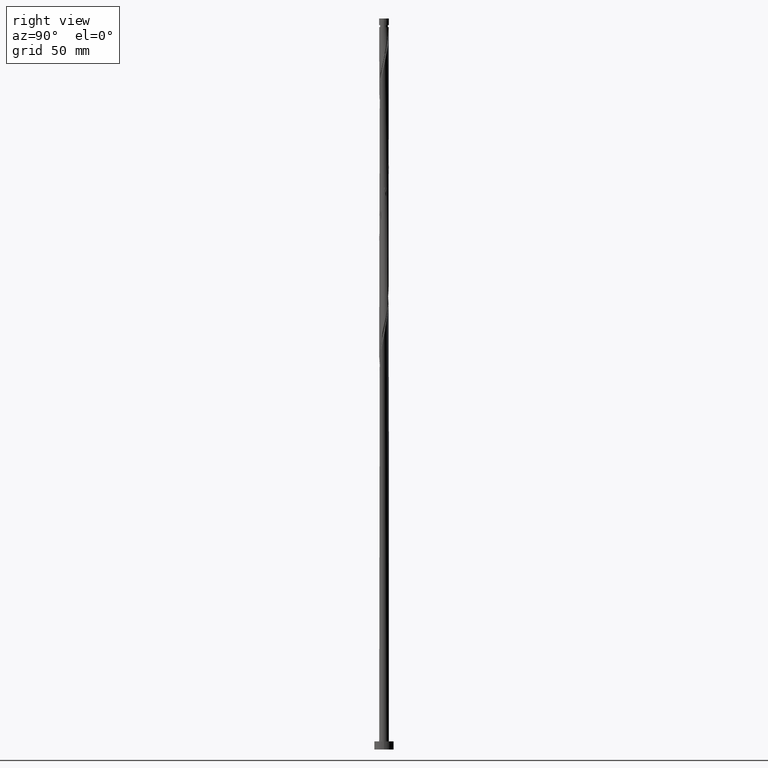
[diagram: clean part render]
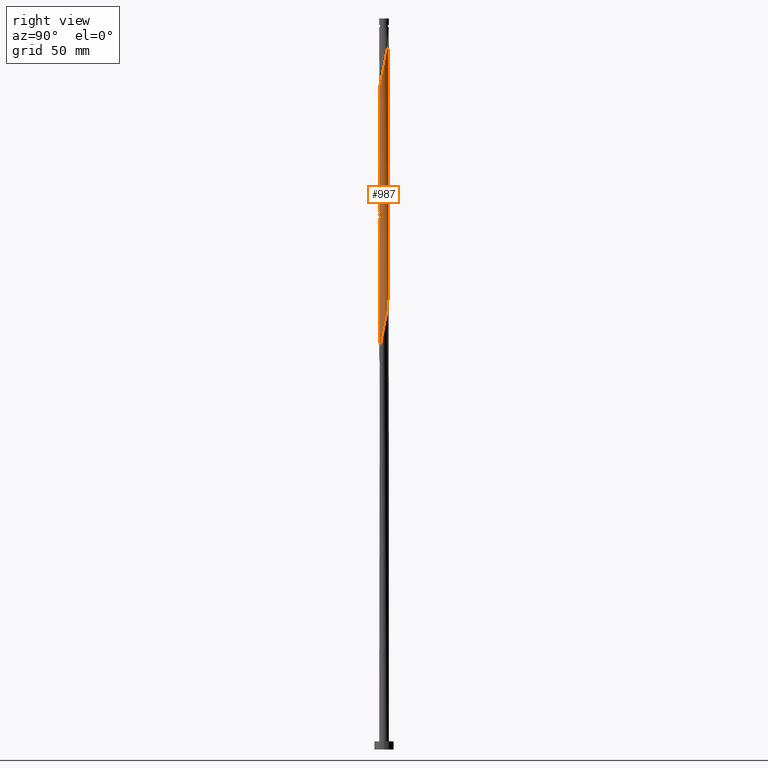
[diagram: same view with one face highlighted and labeled with its STEP entity id]
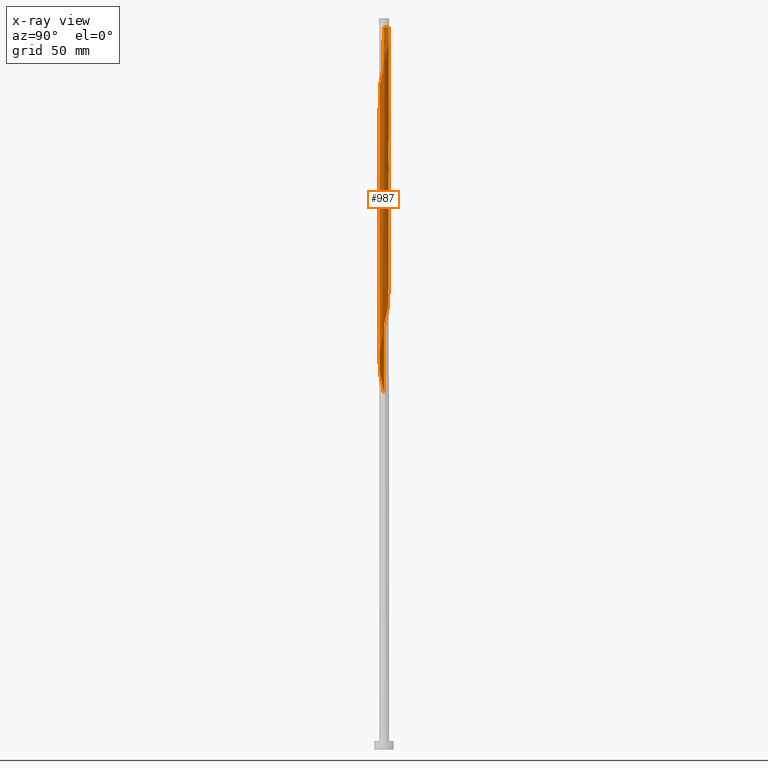
[diagram: x-ray of the same camera — body ghosted, the highlighted face saturated]
A machine part, right view. The second image highlights one B-rep face of the part: STEP entity #987.
The next image is the same camera in x-ray: the body ghosted, the highlighted face saturated — about 0% of this face is hidden behind the body in this view.
In plain terms, the highlighted cylindrical surface (bore or boss wall) has radius 3 mm, axis along (-0, -0, -1).
Its self-contained STEP definition (entity closure, byte-faithful):
#9 = CARTESIAN_POINT ( 'NONE',  ( 2.881201374597972542, -0.8865571881340372773, 341.3779548537389701 ) ) ;
#15 = CARTESIAN_POINT ( 'NONE',  ( -2.322612231291374396, 1.921660071883963150, 377.8362881870723982 ) ) ;
#17 = VERTEX_POINT ( 'NONE', #1264 ) ;
#19 = CARTESIAN_POINT ( 'NONE',  ( -2.129757576223799465, -2.112849418798540935, 230.7008715204056841 ) ) ;
#37 = CARTESIAN_POINT ( 'NONE',  ( -2.487746701027922391, -1.676638408102568922, 389.5550381870722845 ) ) ;
#38 = CARTESIAN_POINT ( 'NONE',  ( -2.652881170764463281, 1.431616744321171586, 380.4404548537389132 ) ) ;
#47 = CARTESIAN_POINT ( 'NONE',  ( -1.903086606305709028, -2.337855080563638666, 393.4612881870722845 ) ) ;
#55 = CARTESIAN_POINT ( 'NONE',  ( -0.5735401742041612572, 2.944664950138446535, 285.3883715204057694 ) ) ;
#57 = CARTESIAN_POINT ( 'NONE',  ( 0.01195587277276895059, -2.999976176089781621, 402.5758715204057694 ) ) ;
#58 = CARTESIAN_POINT ( 'NONE',  ( 2.776191901540426610, 1.136995393931460985, 350.4925381870723413 ) ) ;
#64 = CARTESIAN_POINT ( 'NONE',  ( -3.000000000000004441, -0.005977960122785148413, 381.7161947635927959 ) ) ;
#73 = CARTESIAN_POINT ( 'NONE',  ( 2.652881170764463281, -1.431616744321171808, 255.4404548537389417 ) ) ;
#80 = CARTESIAN_POINT ( 'NONE',  ( -1.921660071883963150, -2.322612231291374396, 315.3362881870723982 ) ) ;
#83 = CARTESIAN_POINT ( 'NONE',  ( -2.487746701027919283, 1.676638408102567368, 295.8050381870724550 ) ) ;
#84 = VERTEX_POINT ( 'NONE', #1499 ) ;
#89 = CARTESIAN_POINT ( 'NONE',  ( 2.944664950138446535, 0.5735401742041618123, 347.8883715204058262 ) ) ;
#96 = CARTESIAN_POINT ( 'NONE',  ( 2.944664950138446535, 0.5735401742041618123, 264.5550381870724550 ) ) ;
#97 = CARTESIAN_POINT ( 'NONE',  ( 2.767041272681221908, 1.159086966227606208, 428.6175381870723982 ) ) ;
#98 = CARTESIAN_POINT ( 'NONE',  ( 1.159086966227606208, 2.767041272681216579, 360.9092048537390838 ) ) ;
#105 = CARTESIAN_POINT ( 'NONE',  ( 1.410426430302971657, -2.664207629581484049, 247.6279548537389985 ) ) ;
#116 = DIRECTION ( 'NONE',  ( -1.000000000000000000, 0.000000000000000000, 0.000000000000000000 ) ) ;
#145 = CARTESIAN_POINT ( 'NONE',  ( 2.337855080563637777, 1.903086606305704143, 271.0654548537389701 ) ) ;
#153 = CARTESIAN_POINT ( 'NONE',  ( 3.000000000000000444, -0.005977960122789841707, 345.3105482772185724 ) ) ;
#158 = CARTESIAN_POINT ( 'NONE',  ( -2.881201374597971654, 0.8865571881340383875, 383.0446215204057125 ) ) ;
#162 = CARTESIAN_POINT ( 'NONE',  ( -2.944664950138446535, -0.5735401742041610351, 222.8883715204057694 ) ) ;
#175 = CARTESIAN_POINT ( 'NONE',  ( -0.01195587277277008510, -2.999976176089778068, 241.1175381870723129 ) ) ;
#197 = CARTESIAN_POINT ( 'NONE',  ( -1.410426430302972545, 2.664207629581484049, 289.2946215204057125 ) ) ;
#200 = CARTESIAN_POINT ( 'NONE',  ( -0.5735401742041624784, -2.944664950138451420, 399.9717048537390838 ) ) ;
#227 = CARTESIAN_POINT ( 'NONE',  ( 1.136995393931461207, -2.776191901540426610, 246.3258715204057125 ) ) ;
#228 = CARTESIAN_POINT ( 'NONE',  ( -0.3074277363939080243, 2.998798625402031792, 445.5446215204057125 ) ) ;
#235 = CARTESIAN_POINT ( 'NONE',  ( -2.337855080563636889, -1.903086606305705697, 312.7321215204057694 ) ) ;
#240 = CARTESIAN_POINT ( 'NONE',  ( 2.767041272681216579, -1.159086966227606208, 256.7425381870724550 ) ) ;
#241 = CARTESIAN_POINT ( 'NONE',  ( 2.112849418798544487, 2.129757576223801685, 433.8258715204057694 ) ) ;
#262 = DIRECTION ( 'NONE',  ( -0.000000000000000000, -0.000000000000000000, -1.000000000000000000 ) ) ;
#288 = CIRCLE ( 'NONE', #809, 2.999999999999957812 ) ;
#291 = DIRECTION ( 'NONE',  ( -0.000000000000000000, -0.000000000000000000, -1.000000000000000000 ) ) ;
#292 = DIRECTION ( 'NONE',  ( -0.000000000000000000, -0.000000000000000000, -1.000000000000000000 ) ) ;
#313 = CARTESIAN_POINT ( 'NONE',  ( -2.337855080563636889, -1.903086606305705697, 229.3987881870722845 ) ) ;
#323 = CARTESIAN_POINT ( 'NONE',  ( -0.3074277363939119101, -2.998798625402026907, 239.8154548537389985 ) ) ;
#332 = CARTESIAN_POINT ( 'NONE',  ( -2.939999999999999503, 0.5969924622639750655, 384.3467048537390838 ) ) ;
#340 = LINE ( 'NONE', #950, #516 ) ;
#341 = CARTESIAN_POINT ( 'NONE',  ( -0.8635643575599528665, -2.888176173499371391, 398.6696215204055989 ) ) ;
#346 = CARTESIAN_POINT ( 'NONE',  ( 2.337855080563638666, -1.903086606305709028, 414.2946215204057125 ) ) ;
#358 = CARTESIAN_POINT ( 'NONE',  ( -2.888176173499367838, -0.8635643575599509791, 307.5237881870723982 ) ) ;
#362 = CARTESIAN_POINT ( 'NONE',  ( 0.01195587277277040082, 2.999976176089778068, 366.1175381870724550 ) ) ;
#369 = CARTESIAN_POINT ( 'NONE',  ( 0.8865571881340386096, -2.881201374597976095, 406.4821215204057694 ) ) ;
#370 = CARTESIAN_POINT ( 'NONE',  ( 2.501031355072560469, 1.656756518304338899, 353.0967048537389701 ) ) ;
#378 = CARTESIAN_POINT ( 'NONE',  ( 2.487746701027917950, -1.676638408102568700, 254.1383715204057410 ) ) ;
#388 = CARTESIAN_POINT ( 'NONE',  ( -2.939999999999999503, 0.5969924622639750655, 301.0133715204057125 ) ) ;
#391 = CARTESIAN_POINT ( 'NONE',  ( 1.431616744321171808, 2.652881170764462393, 359.6071215204057694 ) ) ;
#400 = CARTESIAN_POINT ( 'NONE',  ( 2.881201374597976539, 0.8865571881340368332, 427.3154548537389701 ) ) ;
#414 =( BOUNDED_CURVE ( )  B_SPLINE_CURVE ( 2, ( #1097, #611, #1225, #1701, #332, #158, #1074, #38, #776, #15, #623, #1711, #1237, #1740, #1920, #1308, #707, #1588, #362, #670, #1909, #1580, #98, #391, #1002, #679, #1138, #1317, #370, #978, #58, #549, #89, #1599, #1732 ),
 .UNSPECIFIED., .F., .T. ) 
 B_SPLINE_CURVE_WITH_KNOTS ( ( 3, 2, 2, 2, 2, 2, 2, 2, 2, 2, 2, 2, 2, 2, 2, 2, 2, 3 ),
 ( 0.4295286902180869837, 0.4296875000000000000, 0.4375000000000000000, 0.4453125000000000000, 0.4531250000000000000, 0.4609375000000000000, 0.4687500000000000000, 0.4765625000000000000, 0.4843750000000000000, 0.4921875000000000000, 0.5000000000000000000, 0.5078125000000000000, 0.5156250000000000000, 0.5234375000000000000, 0.5312500000000000000, 0.5390625000000000000, 0.5468750000000000000, 0.5545286902180873723 ),
 .UNSPECIFIED. ) 
 CURVE ( )  GEOMETRIC_REPRESENTATION_ITEM ( )  RATIONAL_B_SPLINE_CURVE ( ( 0.9089165573359706540, 0.9090019243628755241, 0.9090909090909674584, 0.9047133878838734544, 0.9090909090909674584, 0.9047133878838734544, 0.9090909090909674584, 0.9047133878838734544, 0.9090909090909674584, 0.9047133878838734544, 0.9090909090909674584, 0.9047133878838734544, 0.9090909090909674584, 0.9047133878838734544, 0.9090909090909674584, 0.9047133878838734544, 0.9090909090909674584, 0.9047133878838734544, 0.9090909090909674584, 0.9047133878838734544, 0.9090909090909674584, 0.9047133878838734544, 0.9090909090909674584, 0.9047133878838734544, 0.9090909090909674584, 0.9047133878838734544, 0.9090909090909674584, 0.9047133878838734544, 0.9090909090909674584, 0.9047133878838734544, 0.9090909090909674584, 0.9047133878838734544, 0.9090909090909674584, 0.9048023726119651666, 0.9089165573359709871 ) ) 
 REPRESENTATION_ITEM ( '' )  );
#419 = CARTESIAN_POINT ( 'NONE',  ( 2.501031355072563134, -1.656756518304342229, 415.5967048537390269 ) ) ;
#427 = EDGE_CURVE ( 'NONE', #1408, #17, #288, .T. ) ;
#435 = ORIENTED_EDGE ( 'NONE', *, *, #1825, .F. ) ;
#465 = CARTESIAN_POINT ( 'NONE',  ( 2.998798625402026907, -0.3074277363939132979, 343.9821215204056557 ) ) ;
#473 = CARTESIAN_POINT ( 'NONE',  ( -1.921660071883963150, -2.322612231291374396, 232.0029548537390269 ) ) ;
#477 =( BOUNDED_CURVE ( )  B_SPLINE_CURVE ( 2, ( #1523, #153, #1256, #465, #1849, #9, #770, #1514, #616, #1230, #1693, #1060, #488, #1837, #796, #806, #1080, #1104, #1534, #629, #1243, #1972, #935, #1401, #1211, #80, #1153, #235, #1717, #559, #676, #358, #1585, #1757, #1745, #684, #388, #1296, #1895, #1904, #83, #524, #694, #536, #1568, #197, #820, #1424, #55, #667, #1279, #1126, #1729, #968, #1577, #750, #1796, #740, #1963, #145, #1204, #761, #558, #1608, #96, #1011, #527, #1299, #1786, #1021, #240, #73, #378, #1629, #1597, #1775, #1462, #105, #227, #768, #1077, #1227, #175, #323, #932, #1846, #1834, #1677, #1544, #473, #19, #313, #1089, #626, #922, #1531, #162, #780, #1387 ),
 .UNSPECIFIED., .F., .T. ) 
 B_SPLINE_CURVE_WITH_KNOTS ( ( 3, 2, 2, 2, 2, 2, 2, 2, 2, 2, 2, 2, 2, 2, 2, 2, 2, 2, 2, 2, 2, 2, 2, 2, 2, 2, 2, 2, 2, 2, 2, 2, 2, 2, 2, 2, 2, 2, 2, 2, 2, 2, 2, 2, 2, 2, 2, 2, 2, 3 ),
 ( 0.5545286902180873723, 0.5546875000000000000, 0.5625000000000000000, 0.5703125000000000000, 0.5781250000000000000, 0.5859375000000000000, 0.5937500000000000000, 0.6015625000000000000, 0.6093750000000000000, 0.6171875000000000000, 0.6250000000000000000, 0.6328125000000000000, 0.6406250000000000000, 0.6484375000000000000, 0.6562500000000000000, 0.6640625000000000000, 0.6718750000000000000, 0.6796875000000000000, 0.6875000000000000000, 0.6953125000000000000, 0.7031250000000000000, 0.7109375000000000000, 0.7187500000000000000, 0.7265625000000000000, 0.7343750000000000000, 0.7421875000000000000, 0.7500000000000000000, 0.7578125000000000000, 0.7656250000000000000, 0.7734375000000000000, 0.7812500000000000000, 0.7890625000000000000, 0.7968750000000000000, 0.8046875000000000000, 0.8125000000000000000, 0.8203125000000000000, 0.8281250000000000000, 0.8359375000000000000, 0.8437500000000000000, 0.8515625000000000000, 0.8593750000000000000, 0.8671875000000000000, 0.8750000000000000000, 0.8828125000000000000, 0.8906250000000000000, 0.8984375000000000000, 0.9062500000000000000, 0.9140625000000000000, 0.9218750000000000000, 0.9295286902180872612 ),
 .UNSPECIFIED. ) 
 CURVE ( )  GEOMETRIC_REPRESENTATION_ITEM ( )  RATIONAL_B_SPLINE_CURVE ( ( 0.9089165573359709871, 0.9090019243628757462, 0.9090909090909674584, 0.9047133878838734544, 0.9090909090909674584, 0.9047133878838734544, 0.9090909090909674584, 0.9047133878838734544, 0.9090909090909674584, 0.9047133878838734544, 0.9090909090909674584, 0.9047133878838734544, 0.9090909090909674584, 0.9047133878838734544, 0.9090909090909674584, 0.9047133878838734544, 0.9090909090909674584, 0.9047133878838734544, 0.9090909090909674584, 0.9047133878838734544, 0.9090909090909674584, 0.9047133878838734544, 0.9090909090909674584, 0.9047133878838734544, 0.9090909090909674584, 0.9047133878838734544, 0.9090909090909674584, 0.9047133878838734544, 0.9090909090909674584, 0.9047133878838734544, 0.9090909090909674584, 0.9047133878838734544, 0.9090909090909674584, 0.9047133878838734544, 0.9090909090909674584, 0.9047133878838734544, 0.9090909090909674584, 0.9047133878838734544, 0.9090909090909674584, 0.9047133878838734544, 0.9090909090909674584, 0.9047133878838734544, 0.9090909090909674584, 0.9047133878838734544, 0.9090909090909674584, 0.9047133878838734544, 0.9090909090909674584, 0.9047133878838734544, 0.9090909090909674584, 0.9047133878838734544, 0.9090909090909674584, 0.9047133878838734544, 0.9090909090909674584, 0.9047133878838734544, 0.9090909090909674584, 0.9047133878838734544, 0.9090909090909674584, 0.9047133878838734544, 0.9090909090909674584, 0.9047133878838734544, 0.9090909090909674584, 0.9047133878838734544, 0.9090909090909674584, 0.9047133878838734544, 0.9090909090909674584, 0.9047133878838734544, 0.9090909090909674584, 0.9047133878838734544, 0.9090909090909674584, 0.9047133878838734544, 0.9090909090909674584, 0.9047133878838734544, 0.9090909090909674584, 0.9047133878838734544, 0.9090909090909674584, 0.9047133878838734544, 0.9090909090909674584, 0.9047133878838734544, 0.9090909090909674584, 0.9047133878838734544, 0.9090909090909674584, 0.9047133878838734544, 0.9090909090909674584, 0.9047133878838734544, 0.9090909090909674584, 0.9047133878838734544, 0.9090909090909674584, 0.9047133878838734544, 0.9090909090909674584, 0.9047133878838734544, 0.9090909090909674584, 0.9047133878838734544, 0.9090909090909674584, 0.9047133878838734544, 0.9090909090909674584, 0.9047133878838734544, 0.9090909090909674584, 0.9048023726119652776, 0.9089165573359708761 ) ) 
 REPRESENTATION_ITEM ( '' )  );
#478 = EDGE_CURVE ( 'NONE', #1489, #637, #1363, .T. ) ;
#481 = CARTESIAN_POINT ( 'NONE',  ( -3.000000000000000444, 0.000000000000000000, 452.1200000000000045 ) ) ;
#488 = CARTESIAN_POINT ( 'NONE',  ( 1.656756518304339121, -2.501031355072560469, 332.2633715204058262 ) ) ;
#516 = VECTOR ( 'NONE', #1380, 1000.000000000000000 ) ;
#517 = CARTESIAN_POINT ( 'NONE',  ( 0.5969924622639749545, -2.940000000000005276, 405.1800381870724550 ) ) ;
#524 = CARTESIAN_POINT ( 'NONE',  ( -2.322612231291374396, 1.921660071883963150, 294.5029548537390269 ) ) ;
#527 = CARTESIAN_POINT ( 'NONE',  ( 2.999976176089778068, -0.01195587277277018919, 261.9508715204057125 ) ) ;
#529 = CARTESIAN_POINT ( 'NONE',  ( 2.888176173499371391, -0.8635643575599529775, 419.5029548537390838 ) ) ;
#536 = CARTESIAN_POINT ( 'NONE',  ( -1.903086606305705031, 2.337855080563636889, 291.8987881870723413 ) ) ;
#549 = CARTESIAN_POINT ( 'NONE',  ( 2.888176173499366950, 0.8635643575599506461, 349.1904548537390838 ) ) ;
#558 = CARTESIAN_POINT ( 'NONE',  ( 2.776191901540426610, 1.136995393931460985, 267.1592048537390269 ) ) ;
#559 = CARTESIAN_POINT ( 'NONE',  ( -2.664207629581484049, -1.410426430302972545, 310.1279548537387996 ) ) ;
#560 = CARTESIAN_POINT ( 'NONE',  ( 2.487746701027921947, 1.676638408102569588, 431.2217048537390269 ) ) ;
#611 = CARTESIAN_POINT ( 'NONE',  ( -3.000000000000001332, 0.005977960122775521565, 386.9772149438853148 ) ) ;
#616 = CARTESIAN_POINT ( 'NONE',  ( 2.487746701027917950, -1.676638408102568700, 337.4717048537390838 ) ) ;
#623 = CARTESIAN_POINT ( 'NONE',  ( -2.112849418798540935, 2.129757576223799465, 376.5342048537390269 ) ) ;
#625 = ORIENTED_EDGE ( 'NONE', *, *, #427, .T. ) ;
#626 = CARTESIAN_POINT ( 'NONE',  ( -2.664207629581484049, -1.410426430302972545, 226.7946215204056557 ) ) ;
#629 = CARTESIAN_POINT ( 'NONE',  ( -0.3074277363939119101, -2.998798625402026907, 323.1487881870725118 ) ) ;
#637 = VERTEX_POINT ( 'NONE', #1887 ) ;
#646 = CARTESIAN_POINT ( 'NONE',  ( -3.000000000000000444, -2.025051232181741774E-15, 387.0035684984025011 ) ) ;
#647 = CARTESIAN_POINT ( 'NONE',  ( -2.112849418798544043, -2.129757576223801685, 392.1592048537389701 ) ) ;
#651 = ORIENTED_EDGE ( 'NONE', *, *, #1918, .F. ) ;
#667 = CARTESIAN_POINT ( 'NONE',  ( -0.2835159908483709801, 3.001153726777527897, 284.0862881870723982 ) ) ;
#670 = CARTESIAN_POINT ( 'NONE',  ( 0.3074277363939118546, 2.998798625402026907, 364.8154548537389132 ) ) ;
#676 = CARTESIAN_POINT ( 'NONE',  ( -2.776191901540425722, -1.136995393931461207, 308.8258715204057125 ) ) ;
#679 = CARTESIAN_POINT ( 'NONE',  ( 1.921660071883963372, 2.322612231291373508, 357.0029548537390838 ) ) ;
#684 = CARTESIAN_POINT ( 'NONE',  ( -2.998798625402026907, 0.3074277363939117436, 302.3154548537389701 ) ) ;
#694 = CARTESIAN_POINT ( 'NONE',  ( -2.112849418798540935, 2.129757576223799465, 293.2008715204057694 ) ) ;
#707 = CARTESIAN_POINT ( 'NONE',  ( -0.5735401742041612572, 2.944664950138446535, 368.7217048537390838 ) ) ;
#715 = CARTESIAN_POINT ( 'NONE',  ( 2.999976176089782065, 0.01195587277276874069, 423.4092048537389701 ) ) ;
#724 = EDGE_LOOP ( 'NONE', ( #1960, #625, #1185, #1144, #1905, #435, #1653, #651 ) ) ;
#740 = CARTESIAN_POINT ( 'NONE',  ( 1.921660071883963372, 2.322612231291373508, 273.6696215204057125 ) ) ;
#750 = CARTESIAN_POINT ( 'NONE',  ( 1.431616744321171808, 2.652881170764462393, 276.2737881870723413 ) ) ;
#754 = DIRECTION ( 'NONE',  ( -0.000000000000000000, -0.000000000000000000, -1.000000000000000000 ) ) ;
#761 = CARTESIAN_POINT ( 'NONE',  ( 2.664207629581483605, 1.410426430302972767, 268.4612881870723982 ) ) ;
#768 = CARTESIAN_POINT ( 'NONE',  ( 0.8635643575599506461, -2.888176173499367838, 245.0237881870723413 ) ) ;
#770 = CARTESIAN_POINT ( 'NONE',  ( 2.767041272681216579, -1.159086966227606208, 340.0758715204058262 ) ) ;
#776 = CARTESIAN_POINT ( 'NONE',  ( -2.487746701027919283, 1.676638408102567368, 379.1383715204056557 ) ) ;
#780 = CARTESIAN_POINT ( 'NONE',  ( -3.000000000000001332, -0.2894394447869411136, 221.6128819371518262 ) ) ;
#796 = CARTESIAN_POINT ( 'NONE',  ( 1.136995393931461207, -2.776191901540426610, 329.6592048537390269 ) ) ;
#806 = CARTESIAN_POINT ( 'NONE',  ( 0.8635643575599506461, -2.888176173499367838, 328.3571215204056557 ) ) ;
#808 = EDGE_CURVE ( 'NONE', #1489, #17, #1251, .T. ) ;
#809 = AXIS2_PLACEMENT_3D ( 'NONE', #1831, #754, #1657 ) ;
#820 = CARTESIAN_POINT ( 'NONE',  ( -1.136995393931461873, 2.776191901540426610, 287.9925381870724550 ) ) ;
#830 = CARTESIAN_POINT ( 'NONE',  ( -2.999976176089781621, -0.01195587277276969826, 381.7425381870723413 ) ) ;
#837 = CARTESIAN_POINT ( 'NONE',  ( -3.000000000000005329, -1.324251173920955977E-15, 381.6898412090755528 ) ) ;
#865 = CARTESIAN_POINT ( 'NONE',  ( 3.000000000000000444, 3.673940397442060361E-16, 446.8467048537391406 ) ) ;
#922 = CARTESIAN_POINT ( 'NONE',  ( -2.776191901540425722, -1.136995393931461207, 225.4925381870723697 ) ) ;
#932 = CARTESIAN_POINT ( 'NONE',  ( -0.5969924622639750655, -2.939999999999999503, 238.5133715204056557 ) ) ;
#935 = CARTESIAN_POINT ( 'NONE',  ( -1.159086966227605764, -2.767041272681217023, 319.2425381870724550 ) ) ;
#943 = VERTEX_POINT ( 'NONE', #865 ) ;
#950 = CARTESIAN_POINT ( 'NONE',  ( -3.000000000000000444, 0.000000000000000000, 452.1200000000000045 ) ) ;
#952 = CARTESIAN_POINT ( 'NONE',  ( -1.656756518304341785, -2.501031355072563134, 394.7633715204057125 ) ) ;
#961 = CARTESIAN_POINT ( 'NONE',  ( -2.652881170764467278, -1.431616744321172474, 388.2529548537390269 ) ) ;
#968 = CARTESIAN_POINT ( 'NONE',  ( 0.8865571881340373883, 2.881201374597972098, 278.8779548537389701 ) ) ;
#977 = CARTESIAN_POINT ( 'NONE',  ( 1.921660071883964926, -2.322612231291378837, 411.6904548537390269 ) ) ;
#978 = CARTESIAN_POINT ( 'NONE',  ( 2.664207629581483605, 1.410426430302972767, 351.7946215204057125 ) ) ;
#987 = ADVANCED_FACE ( 'NONE', ( #1473 ), #1787, .T. ) ;
#1001 = CARTESIAN_POINT ( 'NONE',  ( 3.001153726777531450, -0.2835159908483721458, 422.1071215204056557 ) ) ;
#1002 = CARTESIAN_POINT ( 'NONE',  ( 1.676638408102568700, 2.487746701027917950, 358.3050381870724550 ) ) ;
#1011 = CARTESIAN_POINT ( 'NONE',  ( 3.001153726777527897, 0.2835159908483701474, 263.2529548537389701 ) ) ;
#1012 = CARTESIAN_POINT ( 'NONE',  ( 1.656756518304342229, 2.501031355072563134, 436.4300381870723413 ) ) ;
#1018 = CARTESIAN_POINT ( 'NONE',  ( -2.999999999999957812, 0.000000000000000000, 446.8467048537390269 ) ) ;
#1021 = CARTESIAN_POINT ( 'NONE',  ( 2.881201374597972542, -0.8865571881340372773, 258.0446215204057125 ) ) ;
#1022 = CARTESIAN_POINT ( 'NONE',  ( 0.000000000000000000, 0.000000000000000000, 452.1200000000000045 ) ) ;
#1033 = CARTESIAN_POINT ( 'NONE',  ( 2.664207629581487158, -1.410426430302976319, 416.8987881870723413 ) ) ;
#1035 = VECTOR ( 'NONE', #292, 1000.000000000000000 ) ;
#1060 = CARTESIAN_POINT ( 'NONE',  ( 1.903086606305704143, -2.337855080563638221, 333.5654548537389701 ) ) ;
#1074 = CARTESIAN_POINT ( 'NONE',  ( -2.767041272681217023, 1.159086966227605098, 381.7425381870724550 ) ) ;
#1077 = CARTESIAN_POINT ( 'NONE',  ( 0.5735401742041605910, -2.944664950138447868, 243.7217048537390838 ) ) ;
#1080 = CARTESIAN_POINT ( 'NONE',  ( 0.5735401742041605910, -2.944664950138447868, 327.0550381870723982 ) ) ;
#1089 = CARTESIAN_POINT ( 'NONE',  ( -2.501031355072560025, -1.656756518304339121, 228.0967048537390269 ) ) ;
#1097 = CARTESIAN_POINT ( 'NONE',  ( -3.000000000000000444, -2.025051232181741774E-15, 387.0035684984025579 ) ) ;
#1104 = CARTESIAN_POINT ( 'NONE',  ( 0.2835159908483702584, -3.001153726777527897, 325.7529548537389132 ) ) ;
#1126 = CARTESIAN_POINT ( 'NONE',  ( 0.3074277363939118546, 2.998798625402026907, 281.4821215204057125 ) ) ;
#1137 = CARTESIAN_POINT ( 'NONE',  ( 1.159086966227606208, -2.767041272681221908, 407.7842048537390269 ) ) ;
#1138 = CARTESIAN_POINT ( 'NONE',  ( 2.129757576223799020, 2.112849418798540935, 355.7008715204057125 ) ) ;
#1144 = ORIENTED_EDGE ( 'NONE', *, *, #478, .T. ) ;
#1146 = CARTESIAN_POINT ( 'NONE',  ( -2.881201374597976095, -0.8865571881340386096, 385.6487881870723413 ) ) ;
#1147 = EDGE_CURVE ( 'NONE', #84, #637, #477, .T. ) ;
#1153 = CARTESIAN_POINT ( 'NONE',  ( -2.129757576223799465, -2.112849418798540935, 314.0342048537390269 ) ) ;
#1158 = CARTESIAN_POINT ( 'NONE',  ( 2.940000000000005276, 0.5969924622639745104, 426.0133715204057125 ) ) ;
#1178 = CARTESIAN_POINT ( 'NONE',  ( 0.8635643575599534216, 2.888176173499371391, 440.3362881870722845 ) ) ;
#1185 = ORIENTED_EDGE ( 'NONE', *, *, #808, .F. ) ;
#1189 = CARTESIAN_POINT ( 'NONE',  ( 2.944664950138451420, -0.5735401742041640327, 420.8050381870723413 ) ) ;
#1204 = CARTESIAN_POINT ( 'NONE',  ( 2.501031355072560469, 1.656756518304338899, 269.7633715204057125 ) ) ;
#1211 = CARTESIAN_POINT ( 'NONE',  ( -1.676638408102567368, -2.487746701027919283, 316.6383715204057694 ) ) ;
#1225 = CARTESIAN_POINT ( 'NONE',  ( -2.999976176089778068, 0.01195587277277051184, 386.9508715204057125 ) ) ;
#1227 = CARTESIAN_POINT ( 'NONE',  ( 0.2835159908483702584, -3.001153726777527897, 242.4196215204056557 ) ) ;
#1230 = CARTESIAN_POINT ( 'NONE',  ( 2.322612231291374396, -1.921660071883963150, 336.1696215204057694 ) ) ;
#1234 = CARTESIAN_POINT ( 'NONE',  ( -3.000000000000005329, -1.324251173920955977E-15, 381.6898412090755528 ) ) ;
#1237 = CARTESIAN_POINT ( 'NONE',  ( -1.656756518304339121, 2.501031355072560025, 373.9300381870723982 ) ) ;
#1243 = CARTESIAN_POINT ( 'NONE',  ( -0.5969924622639750655, -2.939999999999999503, 321.8467048537391406 ) ) ;
#1251 =( BOUNDED_CURVE ( )  B_SPLINE_CURVE ( 2, ( #837, #64, #830, #1289, #1570, #1146, #1405, #961, #37, #1710, #647, #47, #952, #1261, #1866, #341, #200, #1427, #57, #1897, #517, #369, #1137, #1739, #1560, #977, #1587, #346, #419, #1033, #1908, #529, #1189, #1001, #715, #1776, #1158, #400, #97, #1947, #560, #1609, #241, #1492, #1012, #1927, #1750, #1178, #1798, #1761, #1327, #228, #1642 ),
 .UNSPECIFIED., .F., .T. ) 
 B_SPLINE_CURVE_WITH_KNOTS ( ( 3, 2, 2, 2, 2, 2, 2, 2, 2, 2, 2, 2, 2, 2, 2, 2, 2, 2, 2, 2, 2, 2, 2, 2, 2, 2, 3 ),
 ( 0.5545286902180872612, 0.5546875000000000000, 0.5625000000000000000, 0.5703125000000000000, 0.5781250000000000000, 0.5859375000000000000, 0.5937500000000000000, 0.6015625000000000000, 0.6093750000000000000, 0.6171875000000000000, 0.6250000000000000000, 0.6328125000000000000, 0.6406250000000000000, 0.6484375000000000000, 0.6562500000000000000, 0.6640625000000000000, 0.6718749999999998890, 0.6796874999999998890, 0.6875000000000000000, 0.6953124999999998890, 0.7031249999999998890, 0.7109374999999998890, 0.7187499999999998890, 0.7265624999999998890, 0.7343749999999998890, 0.7421874999999998890, 0.7499999999999998890 ),
 .UNSPECIFIED. ) 
 CURVE ( )  GEOMETRIC_REPRESENTATION_ITEM ( )  RATIONAL_B_SPLINE_CURVE ( ( 0.9089165573359765382, 0.9090019243628812973, 0.9090909090909731205, 0.9047133878838791166, 0.9090909090909731205, 0.9047133878838791166, 0.9090909090909731205, 0.9047133878838791166, 0.9090909090909731205, 0.9047133878838791166, 0.9090909090909731205, 0.9047133878838791166, 0.9090909090909731205, 0.9047133878838791166, 0.9090909090909731205, 0.9047133878838791166, 0.9090909090909731205, 0.9047133878838791166, 0.9090909090909731205, 0.9047133878838791166, 0.9090909090909731205, 0.9047133878838791166, 0.9090909090909731205, 0.9047133878838791166, 0.9090909090909731205, 0.9047133878838791166, 0.9090909090909731205, 0.9047133878838791166, 0.9090909090909731205, 0.9047133878838791166, 0.9090909090909731205, 0.9047133878838791166, 0.9090909090909731205, 0.9047133878838791166, 0.9090909090909731205, 0.9047133878838791166, 0.9090909090909731205, 0.9047133878838791166, 0.9090909090909731205, 0.9047133878838791166, 0.9090909090909731205, 0.9047133878838791166, 0.9090909090909731205, 0.9047133878838791166, 0.9090909090909731205, 0.9047133878838791166, 0.9090909090909731205, 0.9047133878838791166, 0.9090909090909731205, 0.9047133878838791166, 0.9090909090909731205, 0.9047133878838791166, 0.9090909090909731205 ) ) 
 REPRESENTATION_ITEM ( '' )  );
#1256 = CARTESIAN_POINT ( 'NONE',  ( 2.999976176089778068, -0.01195587277277018919, 345.2842048537390838 ) ) ;
#1261 = CARTESIAN_POINT ( 'NONE',  ( -1.410426430302974765, -2.664207629581487602, 396.0654548537389132 ) ) ;
#1264 = CARTESIAN_POINT ( 'NONE',  ( -0.5969924622640546685, 2.940000000000803304, 446.8467048537391406 ) ) ;
#1267 = AXIS2_PLACEMENT_3D ( 'NONE', #1022, #262, #116 ) ;
#1279 = CARTESIAN_POINT ( 'NONE',  ( 0.01195587277277040082, 2.999976176089778068, 282.7842048537390269 ) ) ;
#1289 = CARTESIAN_POINT ( 'NONE',  ( -2.998798625402031348, -0.3074277363939112995, 383.0446215204057125 ) ) ;
#1296 = CARTESIAN_POINT ( 'NONE',  ( -2.881201374597971654, 0.8865571881340383875, 299.7112881870723982 ) ) ;
#1299 = CARTESIAN_POINT ( 'NONE',  ( 2.998798625402026907, -0.3074277363939132979, 260.6487881870723982 ) ) ;
#1308 = CARTESIAN_POINT ( 'NONE',  ( -0.8635643575599506461, 2.888176173499367838, 370.0237881870723982 ) ) ;
#1317 = CARTESIAN_POINT ( 'NONE',  ( 2.337855080563637777, 1.903086606305704143, 354.3987881870723982 ) ) ;
#1327 = CARTESIAN_POINT ( 'NONE',  ( -0.01195587277276863487, 2.999976176089782065, 444.2425381870723982 ) ) ;
#1363 = LINE ( 'NONE', #481, #1954 ) ;
#1380 = DIRECTION ( 'NONE',  ( -0.000000000000000000, -0.000000000000000000, -1.000000000000000000 ) ) ;
#1387 = CARTESIAN_POINT ( 'NONE',  ( -3.000000000000000444, -2.025051232181741774E-15, 220.3369018317358439 ) ) ;
#1401 = CARTESIAN_POINT ( 'NONE',  ( -1.431616744321171586, -2.652881170764463281, 317.9404548537389132 ) ) ;
#1405 = CARTESIAN_POINT ( 'NONE',  ( -2.767041272681221908, -1.159086966227605764, 386.9508715204057125 ) ) ;
#1408 = VERTEX_POINT ( 'NONE', #1018 ) ;
#1424 = CARTESIAN_POINT ( 'NONE',  ( -0.8635643575599506461, 2.888176173499367838, 286.6904548537389701 ) ) ;
#1427 = CARTESIAN_POINT ( 'NONE',  ( -0.2835159908483719238, -3.001153726777531450, 401.2737881870723982 ) ) ;
#1462 = CARTESIAN_POINT ( 'NONE',  ( 1.656756518304339121, -2.501031355072560469, 248.9300381870723413 ) ) ;
#1473 = FACE_OUTER_BOUND ( 'NONE', #724, .T. ) ;
#1489 = VERTEX_POINT ( 'NONE', #1234 ) ;
#1492 = CARTESIAN_POINT ( 'NONE',  ( 1.903086606305708361, 2.337855080563639110, 435.1279548537388564 ) ) ;
#1499 = CARTESIAN_POINT ( 'NONE',  ( 3.000000000000000444, 2.316740618133369065E-15, 345.3369018317358154 ) ) ;
#1506 = VERTEX_POINT ( 'NONE', #646 ) ;
#1514 = CARTESIAN_POINT ( 'NONE',  ( 2.652881170764463281, -1.431616744321171808, 338.7737881870724550 ) ) ;
#1523 = CARTESIAN_POINT ( 'NONE',  ( 3.000000000000000444, 2.316740618133369065E-15, 345.3369018317358154 ) ) ;
#1527 = EDGE_CURVE ( 'NONE', #1408, #1506, #340, .T. ) ;
#1531 = CARTESIAN_POINT ( 'NONE',  ( -2.888176173499367838, -0.8635643575599509791, 224.1904548537390269 ) ) ;
#1534 = CARTESIAN_POINT ( 'NONE',  ( -0.01195587277277008510, -2.999976176089778068, 324.4508715204058262 ) ) ;
#1544 = CARTESIAN_POINT ( 'NONE',  ( -1.676638408102567368, -2.487746701027919283, 233.3050381870723697 ) ) ;
#1560 = CARTESIAN_POINT ( 'NONE',  ( 1.676638408102568922, -2.487746701027922835, 410.3883715204055989 ) ) ;
#1568 = CARTESIAN_POINT ( 'NONE',  ( -1.656756518304339121, 2.501031355072560025, 290.5967048537389701 ) ) ;
#1570 = CARTESIAN_POINT ( 'NONE',  ( -2.940000000000005276, -0.5969924622639750655, 384.3467048537390269 ) ) ;
#1577 = CARTESIAN_POINT ( 'NONE',  ( 1.159086966227606208, 2.767041272681216579, 277.5758715204057125 ) ) ;
#1580 = CARTESIAN_POINT ( 'NONE',  ( 0.8865571881340373883, 2.881201374597972098, 362.2112881870723982 ) ) ;
#1585 = CARTESIAN_POINT ( 'NONE',  ( -2.944664950138446535, -0.5735401742041610351, 306.2217048537389701 ) ) ;
#1587 = CARTESIAN_POINT ( 'NONE',  ( 2.129757576223801685, -2.112849418798544487, 412.9925381870723413 ) ) ;
#1588 = CARTESIAN_POINT ( 'NONE',  ( -0.2835159908483709801, 3.001153726777527897, 367.4196215204057125 ) ) ;
#1597 = CARTESIAN_POINT ( 'NONE',  ( 2.112849418798540935, -2.129757576223799020, 251.5342048537389701 ) ) ;
#1599 = CARTESIAN_POINT ( 'NONE',  ( 3.000000000000002665, 0.2894394447869367282, 346.6128819371518830 ) ) ;
#1608 = CARTESIAN_POINT ( 'NONE',  ( 2.888176173499366950, 0.8635643575599506461, 265.8571215204057125 ) ) ;
#1609 = CARTESIAN_POINT ( 'NONE',  ( 2.322612231291378837, 1.921660071883964926, 432.5237881870723982 ) ) ;
#1629 = CARTESIAN_POINT ( 'NONE',  ( 2.322612231291374396, -1.921660071883963150, 252.8362881870724266 ) ) ;
#1642 = CARTESIAN_POINT ( 'NONE',  ( -0.5969924622640546685, 2.940000000000803304, 446.8467048537391406 ) ) ;
#1653 = ORIENTED_EDGE ( 'NONE', *, *, #1825, .T. ) ;
#1657 = DIRECTION ( 'NONE',  ( -1.000000000000000000, 0.000000000000000000, 0.000000000000000000 ) ) ;
#1658 = LINE ( 'NONE', #1666, #1035 ) ;
#1666 = CARTESIAN_POINT ( 'NONE',  ( 3.000000000000000444, 3.673940397442060361E-16, 452.1200000000000045 ) ) ;
#1677 = CARTESIAN_POINT ( 'NONE',  ( -1.431616744321171586, -2.652881170764463281, 234.6071215204056841 ) ) ;
#1693 = CARTESIAN_POINT ( 'NONE',  ( 2.112849418798540935, -2.129757576223799020, 334.8675381870724550 ) ) ;
#1701 = CARTESIAN_POINT ( 'NONE',  ( -2.998798625402026907, 0.3074277363939117436, 385.6487881870722845 ) ) ;
#1710 = CARTESIAN_POINT ( 'NONE',  ( -2.322612231291378837, -1.921660071883964926, 390.8571215204057694 ) ) ;
#1711 = CARTESIAN_POINT ( 'NONE',  ( -1.903086606305705031, 2.337855080563636889, 375.2321215204057694 ) ) ;
#1717 = CARTESIAN_POINT ( 'NONE',  ( -2.501031355072560025, -1.656756518304339121, 311.4300381870724550 ) ) ;
#1729 = CARTESIAN_POINT ( 'NONE',  ( 0.5969924622639755096, 2.939999999999999503, 280.1800381870724550 ) ) ;
#1732 = CARTESIAN_POINT ( 'NONE',  ( 3.000000000000000444, 2.316740618133369065E-15, 345.3369018317358154 ) ) ;
#1739 = CARTESIAN_POINT ( 'NONE',  ( 1.431616744321172030, -2.652881170764467278, 409.0862881870722845 ) ) ;
#1740 = CARTESIAN_POINT ( 'NONE',  ( -1.410426430302972545, 2.664207629581484049, 372.6279548537389701 ) ) ;
#1745 = CARTESIAN_POINT ( 'NONE',  ( -2.999976176089778068, 0.01195587277277051184, 303.6175381870723982 ) ) ;
#1750 = CARTESIAN_POINT ( 'NONE',  ( 1.136995393931463427, 2.776191901540428830, 439.0342048537390838 ) ) ;
#1757 = CARTESIAN_POINT ( 'NONE',  ( -3.001153726777527897, -0.2835159908483705360, 304.9196215204057125 ) ) ;
#1761 = CARTESIAN_POINT ( 'NONE',  ( 0.2835159908483722568, 3.001153726777531450, 442.9404548537389701 ) ) ;
#1775 = CARTESIAN_POINT ( 'NONE',  ( 1.903086606305704143, -2.337855080563638221, 250.2321215204056841 ) ) ;
#1776 = CARTESIAN_POINT ( 'NONE',  ( 2.998798625402031348, 0.3074277363939123542, 424.7112881870722276 ) ) ;
#1786 = CARTESIAN_POINT ( 'NONE',  ( 2.939999999999999503, -0.5969924622639751766, 259.3467048537390269 ) ) ;
#1787 = CYLINDRICAL_SURFACE ( 'NONE', #1267, 3.000000000000000444 ) ;
#1796 = CARTESIAN_POINT ( 'NONE',  ( 1.676638408102568700, 2.487746701027917950, 274.9717048537391406 ) ) ;
#1798 = CARTESIAN_POINT ( 'NONE',  ( 0.5735401742041643658, 2.944664950138451420, 441.6383715204057125 ) ) ;
#1825 = EDGE_CURVE ( 'NONE', #943, #84, #1658, .T. ) ;
#1831 = CARTESIAN_POINT ( 'NONE',  ( 0.000000000000000000, 0.000000000000000000, 446.8467048537390269 ) ) ;
#1834 = CARTESIAN_POINT ( 'NONE',  ( -1.159086966227605764, -2.767041272681217023, 235.9092048537389985 ) ) ;
#1837 = CARTESIAN_POINT ( 'NONE',  ( 1.410426430302971657, -2.664207629581484049, 330.9612881870723413 ) ) ;
#1846 = CARTESIAN_POINT ( 'NONE',  ( -0.8865571881340383875, -2.881201374597971654, 237.2112881870723129 ) ) ;
#1849 = CARTESIAN_POINT ( 'NONE',  ( 2.939999999999999503, -0.5969924622639751766, 342.6800381870723982 ) ) ;
#1866 = CARTESIAN_POINT ( 'NONE',  ( -1.136995393931463205, -2.776191901540428830, 397.3675381870723413 ) ) ;
#1887 = CARTESIAN_POINT ( 'NONE',  ( -3.000000000000000444, -2.025051232181741774E-15, 220.3369018317358439 ) ) ;
#1895 = CARTESIAN_POINT ( 'NONE',  ( -2.767041272681217023, 1.159086966227605098, 298.4092048537390269 ) ) ;
#1897 = CARTESIAN_POINT ( 'NONE',  ( 0.3074277363939111329, -2.998798625402031348, 403.8779548537390838 ) ) ;
#1904 = CARTESIAN_POINT ( 'NONE',  ( -2.652881170764463281, 1.431616744321171586, 297.1071215204057694 ) ) ;
#1905 = ORIENTED_EDGE ( 'NONE', *, *, #1147, .F. ) ;
#1908 = CARTESIAN_POINT ( 'NONE',  ( 2.776191901540428830, -1.136995393931463427, 418.2008715204057694 ) ) ;
#1909 = CARTESIAN_POINT ( 'NONE',  ( 0.5969924622639755096, 2.939999999999999503, 363.5133715204056557 ) ) ;
#1918 = EDGE_CURVE ( 'NONE', #1506, #84, #414, .T. ) ;
#1920 = CARTESIAN_POINT ( 'NONE',  ( -1.136995393931461873, 2.776191901540426610, 371.3258715204057694 ) ) ;
#1927 = CARTESIAN_POINT ( 'NONE',  ( 1.410426430302976319, 2.664207629581486714, 437.7321215204056557 ) ) ;
#1947 = CARTESIAN_POINT ( 'NONE',  ( 2.652881170764467278, 1.431616744321172030, 429.9196215204057694 ) ) ;
#1954 = VECTOR ( 'NONE', #291, 1000.000000000000000 ) ;
#1960 = ORIENTED_EDGE ( 'NONE', *, *, #1527, .F. ) ;
#1963 = CARTESIAN_POINT ( 'NONE',  ( 2.129757576223799020, 2.112849418798540935, 272.3675381870724550 ) ) ;
#1972 = CARTESIAN_POINT ( 'NONE',  ( -0.8865571881340383875, -2.881201374597971654, 320.5446215204057694 ) ) ;